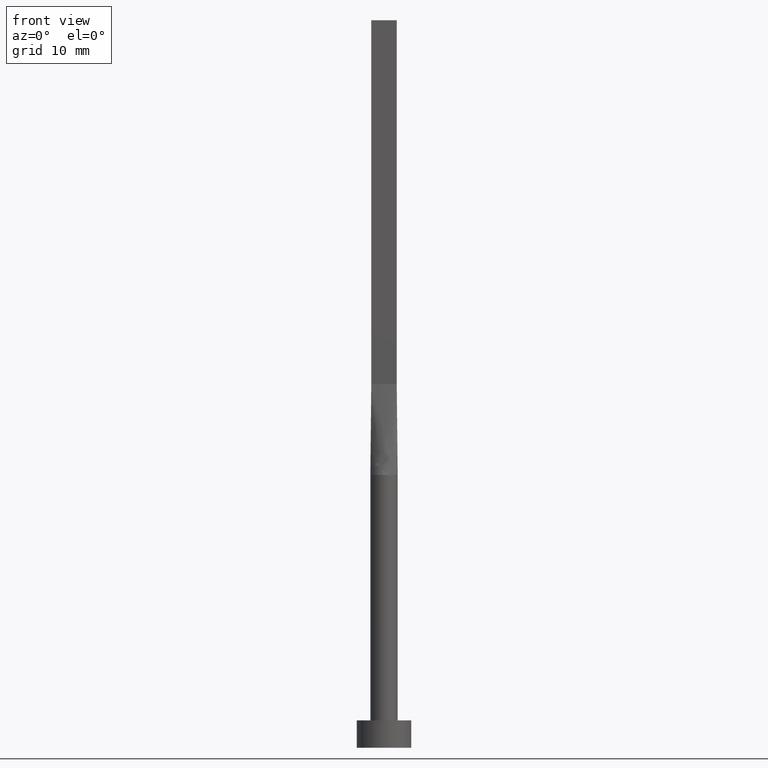
[diagram: clean part render]
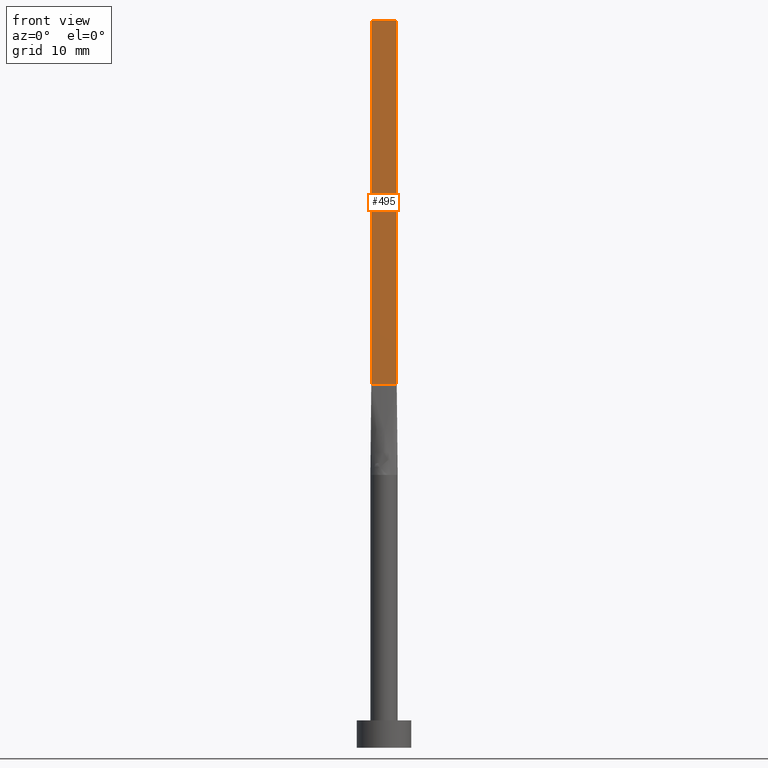
[diagram: same view with one face highlighted and labeled with its STEP entity id]
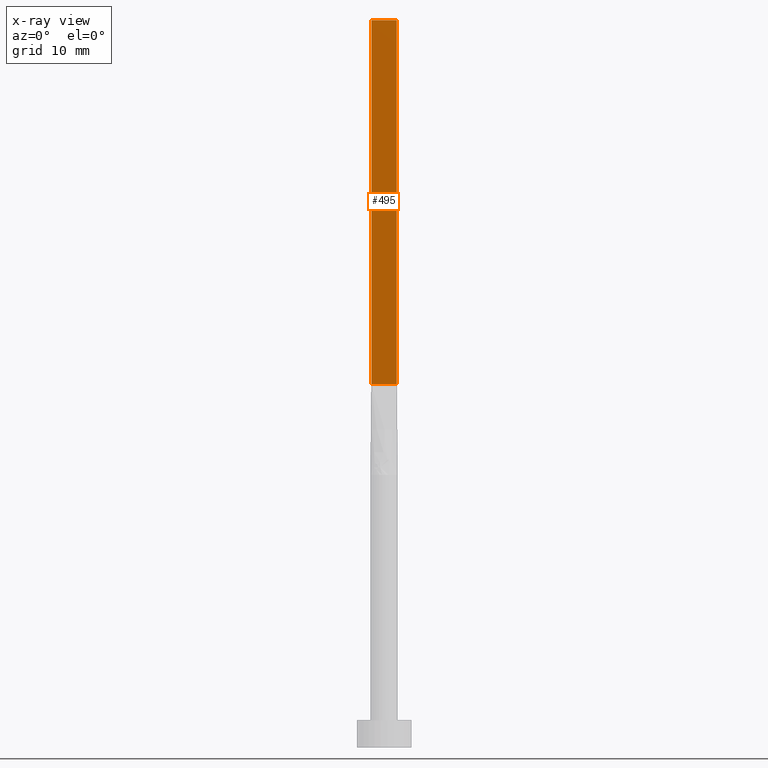
[diagram: x-ray of the same camera — body ghosted, the highlighted face saturated]
A machine part, front view. The second image highlights one B-rep face of the part: STEP entity #495.
The next image is the same camera in x-ray: the body ghosted, the highlighted face saturated — about 0% of this face is hidden behind the body in this view.
In plain terms, the highlighted planar face has unit normal (0, 1, -0).
Its self-contained STEP definition (entity closure, byte-faithful):
#15 = DIRECTION ( 'NONE',  ( 1.000000000000000000, -5.808225924029488744E-17, 0.000000000000000000 ) ) ;
#45 = DIRECTION ( 'NONE',  ( 1.000000000000000000, -5.808225924029488744E-17, 0.000000000000000000 ) ) ;
#50 = CARTESIAN_POINT ( 'NONE',  ( 1.399999999999999911, -0.3999999999999998002, 80.00000000000000000 ) ) ;
#56 = VECTOR ( 'NONE', #210, 1000.000000000000000 ) ;
#71 = CARTESIAN_POINT ( 'NONE',  ( 1.399999999999999911, -0.3999999999999998002, 40.00000000000000000 ) ) ;
#86 = ORIENTED_EDGE ( 'NONE', *, *, #257, .F. ) ;
#90 = CARTESIAN_POINT ( 'NONE',  ( -1.399999999999999911, -0.3999999999999996336, 80.00000000000000000 ) ) ;
#101 = VERTEX_POINT ( 'NONE', #203 ) ;
#116 = LINE ( 'NONE', #301, #56 ) ;
#122 = VECTOR ( 'NONE', #45, 1000.000000000000000 ) ;
#128 = EDGE_CURVE ( 'NONE', #407, #369, #116, .T. ) ;
#130 = ORIENTED_EDGE ( 'NONE', *, *, #128, .F. ) ;
#147 = VERTEX_POINT ( 'NONE', #478 ) ;
#175 = ORIENTED_EDGE ( 'NONE', *, *, #281, .T. ) ;
#188 = CARTESIAN_POINT ( 'NONE',  ( -1.399999999999999911, -0.3999999999999996336, 40.00000000000000000 ) ) ;
#195 = DIRECTION ( 'NONE',  ( 5.808225924029488744E-17, 1.000000000000000000, -0.000000000000000000 ) ) ;
#198 = PLANE ( 'NONE',  #544 ) ;
#203 = CARTESIAN_POINT ( 'NONE',  ( -1.399999999999999911, -0.3999999999999996336, 80.00000000000000000 ) ) ;
#205 = FACE_OUTER_BOUND ( 'NONE', #274, .T. ) ;
#210 = DIRECTION ( 'NONE',  ( -0.000000000000000000, -0.000000000000000000, -1.000000000000000000 ) ) ;
#220 = CARTESIAN_POINT ( 'NONE',  ( -1.399999999999999911, -0.3999999999999996336, 80.00000000000000000 ) ) ;
#222 = ORIENTED_EDGE ( 'NONE', *, *, #291, .T. ) ;
#231 = LINE ( 'NONE', #90, #493 ) ;
#236 = LINE ( 'NONE', #188, #122 ) ;
#257 = EDGE_CURVE ( 'NONE', #101, #407, #231, .T. ) ;
#274 = EDGE_LOOP ( 'NONE', ( #222, #130, #86, #175 ) ) ;
#275 = LINE ( 'NONE', #220, #284 ) ;
#281 = EDGE_CURVE ( 'NONE', #101, #147, #275, .T. ) ;
#284 = VECTOR ( 'NONE', #413, 1000.000000000000000 ) ;
#291 = EDGE_CURVE ( 'NONE', #147, #369, #236, .T. ) ;
#301 = CARTESIAN_POINT ( 'NONE',  ( 1.399999999999999911, -0.3999999999999998002, 80.00000000000000000 ) ) ;
#369 = VERTEX_POINT ( 'NONE', #71 ) ;
#376 = DIRECTION ( 'NONE',  ( -1.000000000000000000, 5.808225924029488744E-17, 0.000000000000000000 ) ) ;
#407 = VERTEX_POINT ( 'NONE', #50 ) ;
#413 = DIRECTION ( 'NONE',  ( -0.000000000000000000, -0.000000000000000000, -1.000000000000000000 ) ) ;
#424 = CARTESIAN_POINT ( 'NONE',  ( -1.399999999999999911, -0.3999999999999996336, 80.00000000000000000 ) ) ;
#478 = CARTESIAN_POINT ( 'NONE',  ( -1.399999999999999911, -0.3999999999999996336, 40.00000000000000000 ) ) ;
#493 = VECTOR ( 'NONE', #15, 1000.000000000000000 ) ;
#495 = ADVANCED_FACE ( 'NONE', ( #205 ), #198, .F. ) ;
#544 = AXIS2_PLACEMENT_3D ( 'NONE', #424, #195, #376 ) ;